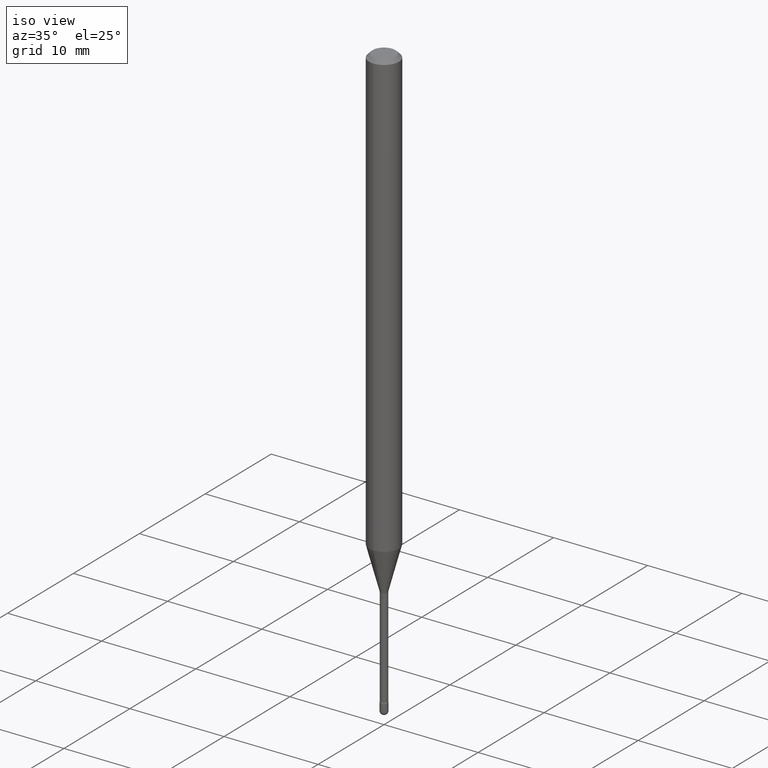
[diagram: clean part render]
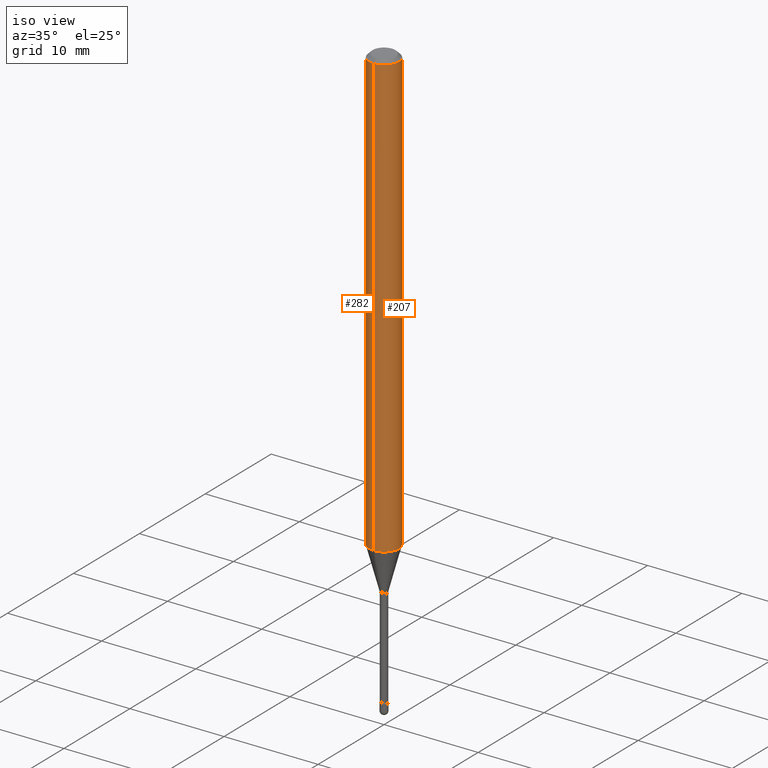
[diagram: same view with one multi-face feature highlighted, each face labeled with its STEP entity id]
A machine part, iso view. The highlighted faces form ONE feature: a constant-radius fillet chain: 2 tangent blend faces with common blend radius 1.5875 mm. The faces share edges in the B-rep.
Their STEP definitions:
[1] entity #282 (Cylinder):
#2 = DIRECTION ( 'NONE',  ( -2.445473815707476510E-29, 3.491474164922030519E-15, 1.000000000000000000 ) ) ;
#3 = ORIENTED_EDGE ( 'NONE', *, *, #186, .F. ) ;
#13 = DIRECTION ( 'NONE',  ( -2.445473815707476510E-29, 3.491474164922030519E-15, 1.000000000000000000 ) ) ;
#20 = VERTEX_POINT ( 'NONE', #154 ) ;
#36 = CARTESIAN_POINT ( 'NONE',  ( 4.440892098500625669E-16, 0.06250000000000000000, 2.598562635836191558E-16 ) ) ;
#37 = ORIENTED_EDGE ( 'NONE', *, *, #467, .T. ) ;
#47 = CARTESIAN_POINT ( 'NONE',  ( 4.538917185208773533E-29, -6.480344212678622894E-15, -1.856048163777072713 ) ) ;
#48 = LINE ( 'NONE', #36, #242 ) ;
#55 = DIRECTION ( 'NONE',  ( -6.982962677686265922E-15, -1.000000000000000000, 4.370956789862821150E-15 ) ) ;
#61 = CARTESIAN_POINT ( 'NONE',  ( -4.364351673553912750E-16, -0.06250000000000005551, -0.01499999999999986587 ) ) ;
#71 = AXIS2_PLACEMENT_3D ( 'NONE', #525, #483, #92 ) ;
#86 = CARTESIAN_POINT ( 'NONE',  ( 4.440892098501082715E-16, 0.06249999999999995143, -0.01500000000000030129 ) ) ;
#92 = DIRECTION ( 'NONE',  ( -6.982962677686265922E-15, -1.000000000000000000, 3.483106191921935554E-15 ) ) ;
#94 = CARTESIAN_POINT ( 'NONE',  ( -4.364351673553916201E-16, -0.06250000000000000000, 6.962905341988730200E-16 ) ) ;
#149 = CARTESIAN_POINT ( 'NONE',  ( -4.364351673553463592E-16, -0.06250000000000649480, -1.856048163777072491 ) ) ;
#154 = CARTESIAN_POINT ( 'NONE',  ( 4.440892098501077785E-16, 0.06249999999999351213, -1.856048163777072935 ) ) ;
#165 = CIRCLE ( 'NONE', #71, 0.06250000000000000000 ) ;
#169 = DIRECTION ( 'NONE',  ( -2.445473815707476510E-29, 3.491474164922030519E-15, 1.000000000000000000 ) ) ;
#186 = EDGE_CURVE ( 'NONE', #20, #451, #48, .T. ) ;
#189 = FACE_OUTER_BOUND ( 'NONE', #538, .T. ) ;
#191 = EDGE_CURVE ( 'NONE', #451, #443, #165, .T. ) ;
#242 = VECTOR ( 'NONE', #2, 39.37007874015748143 ) ;
#273 = LINE ( 'NONE', #94, #386 ) ;
#282 = ADVANCED_FACE ( 'NONE', ( #189 ), #541, .T. ) ;
#283 = AXIS2_PLACEMENT_3D ( 'NONE', #491, #13, #391 ) ;
#301 = EDGE_CURVE ( 'NONE', #426, #443, #273, .T. ) ;
#338 = CIRCLE ( 'NONE', #485, 0.06250000000000000000 ) ;
#386 = VECTOR ( 'NONE', #169, 39.37007874015748143 ) ;
#391 = DIRECTION ( 'NONE',  ( -6.982962677686265922E-15, -1.000000000000000000, 3.491474164922031308E-15 ) ) ;
#400 = ORIENTED_EDGE ( 'NONE', *, *, #301, .T. ) ;
#409 = ORIENTED_EDGE ( 'NONE', *, *, #191, .F. ) ;
#426 = VERTEX_POINT ( 'NONE', #149 ) ;
#443 = VERTEX_POINT ( 'NONE', #61 ) ;
#451 = VERTEX_POINT ( 'NONE', #86 ) ;
#467 = EDGE_CURVE ( 'NONE', #20, #426, #338, .T. ) ;
#471 = DIRECTION ( 'NONE',  ( -2.445473815707476510E-29, 3.491474164922030519E-15, 1.000000000000000000 ) ) ;
#483 = DIRECTION ( 'NONE',  ( -2.445473815707476510E-29, 3.491474164922030519E-15, 1.000000000000000000 ) ) ;
#485 = AXIS2_PLACEMENT_3D ( 'NONE', #47, #471, #55 ) ;
#491 = CARTESIAN_POINT ( 'NONE',  ( -1.169113584055446105E-44, 1.669184350826100908E-30, 4.780733988912460139E-16 ) ) ;
#525 = CARTESIAN_POINT ( 'NONE',  ( 3.668210723561235154E-31, -5.237211247383074400E-17, -0.01500000000000008271 ) ) ;
#538 = EDGE_LOOP ( 'NONE', ( #3, #37, #400, #409 ) ) ;
#541 = CYLINDRICAL_SURFACE ( 'NONE', #283, 0.06250000000000000000 ) ;
[2] entity #207 (Cylinder):
#2 = DIRECTION ( 'NONE',  ( -2.445473815707476510E-29, 3.491474164922030519E-15, 1.000000000000000000 ) ) ;
#14 = ORIENTED_EDGE ( 'NONE', *, *, #361, .T. ) ;
#20 = VERTEX_POINT ( 'NONE', #154 ) ;
#36 = CARTESIAN_POINT ( 'NONE',  ( 4.440892098500625669E-16, 0.06250000000000000000, 2.598562635836191558E-16 ) ) ;
#48 = LINE ( 'NONE', #36, #242 ) ;
#61 = CARTESIAN_POINT ( 'NONE',  ( -4.364351673553912750E-16, -0.06250000000000005551, -0.01499999999999986587 ) ) ;
#86 = CARTESIAN_POINT ( 'NONE',  ( 4.440892098501082715E-16, 0.06249999999999995143, -0.01500000000000030129 ) ) ;
#94 = CARTESIAN_POINT ( 'NONE',  ( -4.364351673553916201E-16, -0.06250000000000000000, 6.962905341988730200E-16 ) ) ;
#120 = AXIS2_PLACEMENT_3D ( 'NONE', #310, #270, #395 ) ;
#149 = CARTESIAN_POINT ( 'NONE',  ( -4.364351673553463592E-16, -0.06250000000000649480, -1.856048163777072491 ) ) ;
#154 = CARTESIAN_POINT ( 'NONE',  ( 4.440892098501077785E-16, 0.06249999999999351213, -1.856048163777072935 ) ) ;
#169 = DIRECTION ( 'NONE',  ( -2.445473815707476510E-29, 3.491474164922030519E-15, 1.000000000000000000 ) ) ;
#170 = EDGE_LOOP ( 'NONE', ( #14, #481, #384, #200 ) ) ;
#186 = EDGE_CURVE ( 'NONE', #20, #451, #48, .T. ) ;
#200 = ORIENTED_EDGE ( 'NONE', *, *, #301, .F. ) ;
#207 = ADVANCED_FACE ( 'NONE', ( #423 ), #294, .T. ) ;
#212 = CIRCLE ( 'NONE', #120, 0.06250000000000000000 ) ;
#242 = VECTOR ( 'NONE', #2, 39.37007874015748143 ) ;
#261 = CARTESIAN_POINT ( 'NONE',  ( -1.169113584055446105E-44, 1.669184350826100908E-30, 4.780733988912460139E-16 ) ) ;
#270 = DIRECTION ( 'NONE',  ( -2.445473815707476510E-29, 3.491474164922030519E-15, 1.000000000000000000 ) ) ;
#273 = LINE ( 'NONE', #94, #386 ) ;
#294 = CYLINDRICAL_SURFACE ( 'NONE', #320, 0.06250000000000000000 ) ;
#301 = EDGE_CURVE ( 'NONE', #426, #443, #273, .T. ) ;
#304 = DIRECTION ( 'NONE',  ( -2.445473815707476510E-29, 3.491474164922030519E-15, 1.000000000000000000 ) ) ;
#310 = CARTESIAN_POINT ( 'NONE',  ( 4.538917185208773533E-29, -6.480344212678622894E-15, -1.856048163777072713 ) ) ;
#320 = AXIS2_PLACEMENT_3D ( 'NONE', #261, #304, #335 ) ;
#335 = DIRECTION ( 'NONE',  ( -6.982962677686265922E-15, -1.000000000000000000, 3.491474164922031308E-15 ) ) ;
#361 = EDGE_CURVE ( 'NONE', #426, #20, #212, .T. ) ;
#378 = AXIS2_PLACEMENT_3D ( 'NONE', #465, #413, #419 ) ;
#384 = ORIENTED_EDGE ( 'NONE', *, *, #399, .F. ) ;
#386 = VECTOR ( 'NONE', #169, 39.37007874015748143 ) ;
#395 = DIRECTION ( 'NONE',  ( -6.982962677686265922E-15, -1.000000000000000000, 4.370956789862821150E-15 ) ) ;
#399 = EDGE_CURVE ( 'NONE', #443, #451, #445, .T. ) ;
#413 = DIRECTION ( 'NONE',  ( -2.445473815707476510E-29, 3.491474164922030519E-15, 1.000000000000000000 ) ) ;
#419 = DIRECTION ( 'NONE',  ( -6.982962677686265922E-15, -1.000000000000000000, 3.483106191921935554E-15 ) ) ;
#423 = FACE_OUTER_BOUND ( 'NONE', #170, .T. ) ;
#426 = VERTEX_POINT ( 'NONE', #149 ) ;
#443 = VERTEX_POINT ( 'NONE', #61 ) ;
#445 = CIRCLE ( 'NONE', #378, 0.06250000000000000000 ) ;
#451 = VERTEX_POINT ( 'NONE', #86 ) ;
#465 = CARTESIAN_POINT ( 'NONE',  ( 3.668210723561235154E-31, -5.237211247383074400E-17, -0.01500000000000008271 ) ) ;
#481 = ORIENTED_EDGE ( 'NONE', *, *, #186, .T. ) ;